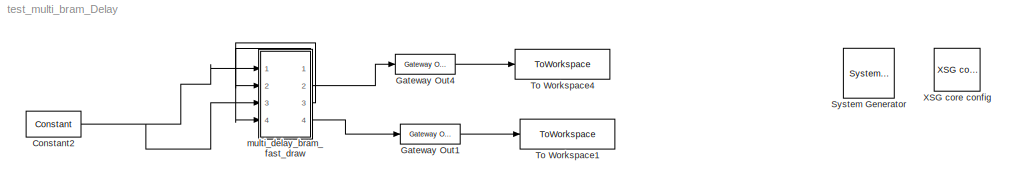
MODEL test_multi_bram_Delay
KIND model
BLOCK [Reference]  System Generator  REF=xbsIndex_r4/ System Generator
  AttributesFormatString = System\\nGenerator
  FunctionWithSeparateData = off
  GeneratePreprocessorConditionals = off
  Ports = []
  RTWMemSecDataConstants = Inherit from model
  RTWMemSecDataInternal = Inherit from model
  RTWMemSecDataParameters = Inherit from model
  RTWMemSecFuncExecute = Inherit from model
  RTWMemSecFuncInitTerm = Inherit from model
  SID = 59
  ShowPortLabels = FromPortIcon
  SourceBlock = xbsIndex_r4/ System Generator
  SourceType = Xilinx System Generator Block
  SystemSampleTime = -1
  Tag = genX
  UserData = DataTag0
  UserDataPersistent = on
  block_type = sysgen
  block_version = 11.4
  clock_wrapper = Clock Enables
  core_generation = According to Block Masks
  dbl_ovrd = According to Block Masks
  dcm_input_clock_period = 100
  deprecated_control = off
  directory = ./spec_2pol_4kw_6tap_pfb/sysgen
  eval_field = 0
  has_advanced_control = 0
  incr_netlist = off
  infoedit = System Generator
  package = ff1136
  part = xc5vsx95t
  run_coregen = off
  sg_icon_stat = 51,50,0,0,token,white,0,58c5b5770fe5f7c311f53dbc6e73f0f6,right,,[ ],[ ]
  sg_mask_display = fprintf('','COMMENT: begin icon graphics');\npatch([0 51 51 0 0 ],[0 0 50 50 0 ],[1 1 1 ]);\npatch([1.6375 16.81 27.31 37.81 48.31 27.31 12.1375 1.6375 ],[36.655 36.655 47.155 36.655 47.155 47.155 47.155 36.655 ],[0.933333 0.203922 0.141176 ]);\npatch([12.1375 27.31 16.81 1.6375 12.1375 ],[26.155 26.155 36.655 36.655 26.155 ],[0.698039 0.0313725 0.219608 ]);\npatch([1.6375 16.81 27.31 12.1375 1.63...<+335ch>
  sggui_pos = 326,241,464,470
  simulink_period = 1
  speed = -1
  synthesis_tool = XST
  sysclk_period = 2.6667
  testbench = off
  trim_vbits = Everywhere in SubSystem
  xilinxfamily = virtex5
BLOCK [Reference] Constant2  REF=xbsIndex_r4/Constant
  Ports = [0, 1]
  SID = 61
  SourceBlock = xbsIndex_r4/Constant
  SourceType = Xilinx Constant Block Block
  arith_type = Signed (2's comp)
  bin_pt = 7
  block_type = constant
  carry = CIN
  const = 0.9
  dbl_ovrd = off
  dsp48_infoedit = The use of this block for DSP48 instructions is deprecated.  Please use the Opmode block.
  equ = P=C
  explicit_period = on
  has_advanced_control = 0
  inp1 = P
  inp2 = PCIN>>17
  n_bits = 8
  opr = +
  opselect = C
  period = 1
  sg_icon_stat = 55,26,0,1,white,blue,0,057bde51,right,,[ ],[ ]
  sg_mask_display = fprintf('','COMMENT: begin icon graphics');\npatch([0 55 55 0 0 ],[0 0 26 26 0 ],[0.77 0.82 0.91 ]);\nplot([0 55 55 0 0 ],[0 0 26 26 0 ]);\npatch([20.325 24.66 27.66 30.66 33.66 27.66 23.325 20.325 ],[16.33 16.33 19.33 16.33 19.33 19.33 19.33 16.33 ],[1 1 1 ]);\npatch([23.325 27.66 24.66 20.325 23.325 ],[13.33 13.33 16.33 16.33 13.33 ],[0.931 0.946 0.973 ]);\npatch([20.325 24.66 27.66 23.325 20.32...<+341ch>
  sggui_pos = -1,-1,-1,-1
BLOCK [Reference] Gateway Out1  REF=xbsIndex_r4/Gateway Out
  LOCs = {}
  Ports = [1, 1]
  SID = 64
  SourceBlock = xbsIndex_r4/Gateway Out
  SourceType = Xilinx Gateway Out Block
  block_type = gatewayout
  block_version = 12.3
  has_advanced_control = 0
  hdl_port = on
  infoedit = Gateway out block.  Converts Xilinx fixed point inputs into ouputs of type Simulink integer, double, or fixed point.<br><br>Hardware notes:  In hardware these blocks become top level output ports or are discarded, depending on how they are configured.  <repeated x7 — deduplicated; at blocks: Gateway Out1, Gateway Out4, Gateway Out2, Gateway Out3, Gateway Out5>
  locs_specified = off
  sg_icon_stat = 60,20,1,1,white,yellow,0,cc31b7ac,right,,[ ],[ ]
  sg_mask_display = fprintf('','COMMENT: begin icon graphics');\npatch([0 60 60 0 0 ],[0 0 20 20 0 ],[0.95 0.93 0.65 ]);\nplot([0 60 60 0 0 ],[0 0 20 20 0 ]);\npatch([25.55 28.44 30.44 32.44 34.44 30.44 27.55 25.55 ],[12.22 12.22 14.22 12.22 14.22 14.22 14.22 12.22 ],[1 1 1 ]);\npatch([27.55 30.44 28.44 25.55 27.55 ],[10.22 10.22 12.22 12.22 10.22 ],[0.985 0.979 0.895 ]);\npatch([25.55 28.44 30.44 27.55 25.55 ],[8.22...<+399ch>  <repeated x7 — deduplicated; at blocks: Gateway Out1, Gateway Out4, Gateway Out2, Gateway Out3, Gateway Out5>
  sggui_pos = -1,-1,-1,-1
  timing_constraint = None
  xl_area = [0,0,0,0,0,0,0]
  xl_use_area = off
BLOCK [Reference] Gateway Out4  REF=xbsIndex_r4/Gateway Out
  LOCs = {}
  Ports = [1, 1]
  SID = 62
  SourceBlock = xbsIndex_r4/Gateway Out
  SourceType = Xilinx Gateway Out Block
  block_type = gatewayout
  block_version = 12.3
  has_advanced_control = 0
  hdl_port = on
  locs_specified = off
  sg_icon_stat = 60,20,1,1,white,yellow,0,cc31b7ac,right,,[ ],[ ]
  sggui_pos = -1,-1,-1,-1
  timing_constraint = None
  xl_area = [0,0,0,0,0,0,0]
  xl_use_area = off
BLOCK [ToWorkspace] To Workspace1
  MaxDataPoints = inf
  Ports = [1]
  SID = 65
  SampleTime = -1
  SaveFormat = Structure
  VariableName = test_delay_1
BLOCK [ToWorkspace] To Workspace4
  MaxDataPoints = inf
  Ports = [1]
  SID = 63
  SampleTime = -1
  SaveFormat = Structure
  VariableName = test_delay
BLOCK [Reference] XSG core config  REF=xps_library/XSG core config  (lib defined in mdl_00b5cec29cd0, mdl_02ab6ecaa3d1, +5 more)
  BEE2_ctrl_clk_src = sys_clk
  BEE2_usr_clk_src = sys_clk
  CORR_clk_src = sys_clk
  FunctionWithSeparateData = off
  GeneratePreprocessorConditionals = off
  Ports = []
  ROACH_clk_src = adc0_clk
  RTWMemSecDataConstants = Inherit from model
  RTWMemSecDataInternal = Inherit from model
  RTWMemSecDataParameters = Inherit from model
  RTWMemSecFuncExecute = Inherit from model
  RTWMemSecFuncInitTerm = Inherit from model
  SID = 60
  ShowPortLabels = FromPortIcon
  SourceBlock = xps_library/XSG core config
  SourceType = xsg core config
  SystemSampleTime = -1
  Tag = xps:xsg
  clk_rate = 375
  clk_src = adc0_clk
  gpio_clk_bit_index = 0
  gpio_clk_io_group = iBOB:sma
  hw_sys = ROACH:sx95t
  iBOB_clk_src = sys_clk
  ibob_linux = off
  mpc_type = powerpc440_ext
  sample_period = 1
  synthesis_tool = XST
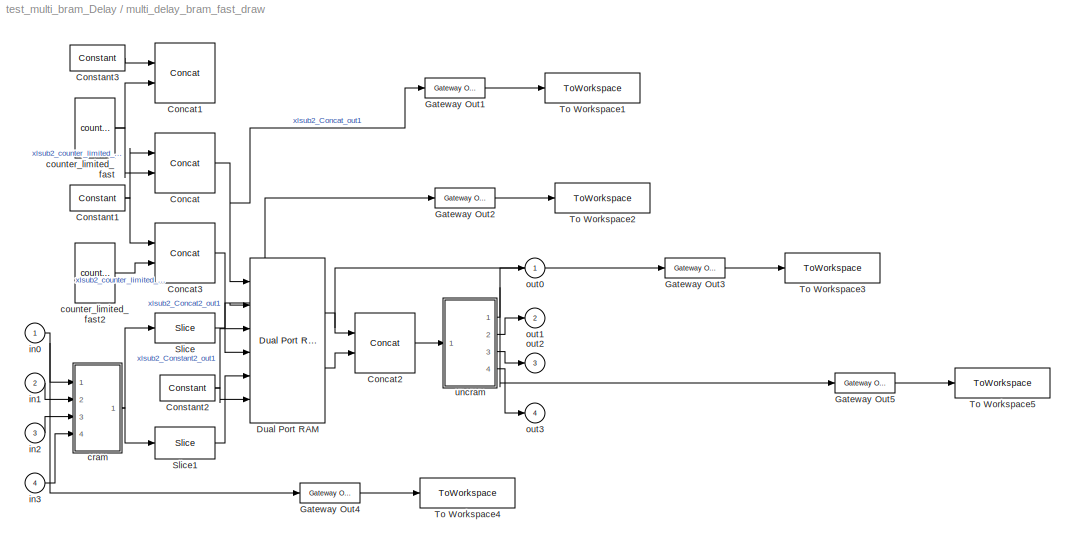
BLOCK [SubSystem] multi_delay_bram_fast_draw
  FunctionWithSeparateData = off
  MaskHideContents = off
  MinAlgLoopOccurrences = off
  Opaque = off
  Ports = [4, 4]
  PropExecContextOutsideSubsystem = off
  RTWSystemCode = Auto
  RequestExecContextInheritance = off
  SID = 3
BLOCK [Reference] multi_delay_bram_fast_draw/Concat  REF=xbsIndex_r4/Concat
  Ports = [2, 1]
  SID = 8
  SourceBlock = xbsIndex_r4/Concat
  SourceType = Xilinx Bus Concatenator Block
  block_type = concat
  dbl_ovrd = off
  has_advanced_control = 0
  infoedit = Concatenates two or more inputs.  Output will be cast to an unsigned value with the binary point at zero.
  num_inputs = 2
  sg_icon_stat = 60,60,2,1,white,blue,0,16398980,right,,[ ],[ ]
  sg_mask_display = fprintf('','COMMENT: begin icon graphics');\npatch([0 60 60 0 0 ],[0 0 60 60 0 ],[0.77 0.82 0.91 ]);\nplot([0 60 60 0 0 ],[0 0 60 60 0 ]);\npatch([12.2 23.76 31.76 39.76 47.76 31.76 20.2 12.2 ],[38.88 38.88 46.88 38.88 46.88 46.88 46.88 38.88 ],[1 1 1 ]);\npatch([20.2 31.76 23.76 12.2 20.2 ],[30.88 30.88 38.88 38.88 30.88 ],[0.931 0.946 0.973 ]);\npatch([12.2 23.76 31.76 20.2 12.2 ],[22.88 22.88 3...<+417ch>  <repeated x4 — deduplicated; at blocks: Concat, Concat1, Concat2, Concat3>
  sggui_pos = -1,-1,-1,-1
BLOCK [Reference] multi_delay_bram_fast_draw/Concat1  REF=xbsIndex_r4/Concat
  Ports = [2, 1]
  SID = 9
  SourceBlock = xbsIndex_r4/Concat
  SourceType = Xilinx Bus Concatenator Block
  block_type = concat
  dbl_ovrd = off
  has_advanced_control = 0
  infoedit = Concatenates two or more inputs.  Output will be cast to an unsigned value with the binary point at zero.
  num_inputs = 2
  sg_icon_stat = 60,60,2,1,white,blue,0,16398980,right,,[ ],[ ]
  sggui_pos = -1,-1,-1,-1
BLOCK [Reference] multi_delay_bram_fast_draw/Concat2  REF=xbsIndex_r4/Concat
  Ports = [2, 1]
  SID = 10
  SourceBlock = xbsIndex_r4/Concat
  SourceType = Xilinx Bus Concatenator Block
  block_type = concat
  dbl_ovrd = off
  has_advanced_control = 0
  infoedit = Concatenates two or more inputs.  Output will be cast to an unsigned value with the binary point at zero.
  num_inputs = 2
  sg_icon_stat = 60,60,2,1,white,blue,0,16398980,right,,[ ],[ ]
  sggui_pos = -1,-1,-1,-1
BLOCK [Reference] multi_delay_bram_fast_draw/Concat3  REF=xbsIndex_r4/Concat
  Ports = [2, 1]
  SID = 11
  SourceBlock = xbsIndex_r4/Concat
  SourceType = Xilinx Bus Concatenator Block
  block_type = concat
  dbl_ovrd = off
  has_advanced_control = 0
  infoedit = Concatenates two or more inputs.  Output will be cast to an unsigned value with the binary point at zero.
  num_inputs = 2
  sg_icon_stat = 60,60,2,1,white,blue,0,16398980,right,,[ ],[ ]
  sggui_pos = -1,-1,-1,-1
BLOCK [Reference] multi_delay_bram_fast_draw/Constant1  REF=xbsIndex_r4/Constant
  Ports = [0, 1]
  SID = 12
  SourceBlock = xbsIndex_r4/Constant
  SourceType = Xilinx Constant Block Block
  arith_type = Boolean
  bin_pt = 0
  block_type = constant
  carry = CIN
  const = 1
  dbl_ovrd = off
  dsp48_infoedit = The use of this block for DSP48 instructions is deprecated.  Please use the Opmode block.
  equ = P=C
  explicit_period = on
  has_advanced_control = 0
  inp1 = P
  inp2 = PCIN>>17
  n_bits = 1
  opr = +
  opselect = C
  period = 1
  sg_icon_stat = 55,26,0,1,white,blue,0,1c72b5be,right,,[ ],[ ]
  sg_mask_display = fprintf('','COMMENT: begin icon graphics');\npatch([0 55 55 0 0 ],[0 0 26 26 0 ],[0.77 0.82 0.91 ]);\nplot([0 55 55 0 0 ],[0 0 26 26 0 ]);\npatch([20.325 24.66 27.66 30.66 33.66 27.66 23.325 20.325 ],[16.33 16.33 19.33 16.33 19.33 19.33 19.33 16.33 ],[1 1 1 ]);\npatch([23.325 27.66 24.66 20.325 23.325 ],[13.33 13.33 16.33 16.33 13.33 ],[0.931 0.946 0.973 ]);\npatch([20.325 24.66 27.66 23.325 20.32...<+333ch>  <repeated x3 — deduplicated; at blocks: Constant1, Constant2, Constant3>
  sggui_pos = -1,-1,-1,-1
BLOCK [Reference] multi_delay_bram_fast_draw/Constant2  REF=xbsIndex_r4/Constant
  Ports = [0, 1]
  SID = 13
  SourceBlock = xbsIndex_r4/Constant
  SourceType = Xilinx Constant Block Block
  arith_type = Boolean
  bin_pt = 0
  block_type = constant
  carry = CIN
  const = 1
  dbl_ovrd = off
  dsp48_infoedit = The use of this block for DSP48 instructions is deprecated.  Please use the Opmode block.
  equ = P=C
  explicit_period = on
  has_advanced_control = 0
  inp1 = P
  inp2 = PCIN>>17
  n_bits = 1
  opr = +
  opselect = C
  period = 1
  sg_icon_stat = 55,26,0,1,white,blue,0,1c72b5be,right,,[ ],[ ]
  sggui_pos = -1,-1,-1,-1
BLOCK [Reference] multi_delay_bram_fast_draw/Constant3  REF=xbsIndex_r4/Constant
  Ports = [0, 1]
  SID = 14
  SourceBlock = xbsIndex_r4/Constant
  SourceType = Xilinx Constant Block Block
  arith_type = Boolean
  bin_pt = 0
  block_type = constant
  carry = CIN
  const = 0
  dbl_ovrd = off
  dsp48_infoedit = The use of this block for DSP48 instructions is deprecated.  Please use the Opmode block.
  equ = P=C
  explicit_period = on
  has_advanced_control = 0
  inp1 = P
  inp2 = PCIN>>17
  n_bits = 1
  opr = +
  opselect = C
  period = 1
  sg_icon_stat = 55,26,0,1,white,blue,0,bf4ddd8b,right,,[ ],[ ]
  sggui_pos = -1,-1,-1,-1
BLOCK [Reference] multi_delay_bram_fast_draw/Dual Port RAM  REF=xbsIndex_r4/Dual Port RAM
  Ports = [6, 2]
  SID = 15
  SourceBlock = xbsIndex_r4/Dual Port RAM
  SourceType = Xilinx Dual Port Random Access Memory Block
  block_type = dpram
  dbl_ovrd = off
  depth = 2048
  distributed_mem = Block RAM
  en_a = off
  en_b = off
  has_advanced_control = 0
  initVector = 0
  init_a = 0
  init_b = 0
  latency = 2
  optimize = Area
  rst_a = off
  rst_b = off
  sg_icon_stat = 75,165,6,2,white,blue,0,28af736d,right,,[ ],[ ]
  sg_mask_display = fprintf('','COMMENT: begin icon graphics');\npatch([0 75 75 0 0 ],[0 0 165 165 0 ],[0.77 0.82 0.91 ]);\nplot([0 75 75 0 0 ],[0 0 165 165 0 ]);\npatch([14.75 29.2 39.2 49.2 59.2 39.2 24.75 14.75 ],[93.1 93.1 103.1 93.1 103.1 103.1 103.1 93.1 ],[1 1 1 ]);\npatch([24.75 39.2 29.2 14.75 24.75 ],[83.1 83.1 93.1 93.1 83.1 ],[0.931 0.946 0.973 ]);\npatch([14.75 29.2 39.2 24.75 14.75 ],[73.1 73.1 83.1 83....<+615ch>
  sggui_pos = -1,-1,-1,-1
  use_rpm = on
  write_mode_A = Read Before Write
  write_mode_B = Read Before Write
  xl_area = [0,0,0,0,0,0,0]
  xl_use_area = off
BLOCK [Reference] multi_delay_bram_fast_draw/Gateway Out1  REF=xbsIndex_r4/Gateway Out
  LOCs = {}
  Ports = [1, 1]
  SID = 16
  SourceBlock = xbsIndex_r4/Gateway Out
  SourceType = Xilinx Gateway Out Block
  block_type = gatewayout
  block_version = 12.3
  has_advanced_control = 0
  hdl_port = on
  locs_specified = off
  sg_icon_stat = 60,20,1,1,white,yellow,0,cc31b7ac,right,,[ ],[ ]
  sggui_pos = -1,-1,-1,-1
  timing_constraint = None
  xl_area = [0,0,0,0,0,0,0]
  xl_use_area = off
BLOCK [Reference] multi_delay_bram_fast_draw/Gateway Out2  REF=xbsIndex_r4/Gateway Out
  LOCs = {}
  Ports = [1, 1]
  SID = 17
  SourceBlock = xbsIndex_r4/Gateway Out
  SourceType = Xilinx Gateway Out Block
  block_type = gatewayout
  block_version = 12.3
  has_advanced_control = 0
  hdl_port = on
  locs_specified = off
  sg_icon_stat = 60,20,1,1,white,yellow,0,cc31b7ac,right,,[ ],[ ]
  sggui_pos = -1,-1,-1,-1
  timing_constraint = None
  xl_area = [0,0,0,0,0,0,0]
  xl_use_area = off
BLOCK [Reference] multi_delay_bram_fast_draw/Gateway Out3  REF=xbsIndex_r4/Gateway Out
  LOCs = {}
  Ports = [1, 1]
  SID = 18
  SourceBlock = xbsIndex_r4/Gateway Out
  SourceType = Xilinx Gateway Out Block
  block_type = gatewayout
  block_version = 12.3
  has_advanced_control = 0
  hdl_port = on
  locs_specified = off
  sg_icon_stat = 60,20,1,1,white,yellow,0,cc31b7ac,right,,[ ],[ ]
  sggui_pos = -1,-1,-1,-1
  timing_constraint = None
  xl_area = [0,0,0,0,0,0,0]
  xl_use_area = off
BLOCK [Reference] multi_delay_bram_fast_draw/Gateway Out4  REF=xbsIndex_r4/Gateway Out
  LOCs = {}
  Ports = [1, 1]
  SID = 19
  SourceBlock = xbsIndex_r4/Gateway Out
  SourceType = Xilinx Gateway Out Block
  block_type = gatewayout
  block_version = 12.3
  has_advanced_control = 0
  hdl_port = on
  locs_specified = off
  sg_icon_stat = 60,20,1,1,white,yellow,0,cc31b7ac,right,,[ ],[ ]
  sggui_pos = -1,-1,-1,-1
  timing_constraint = None
  xl_area = [0,0,0,0,0,0,0]
  xl_use_area = off
BLOCK [Reference] multi_delay_bram_fast_draw/Gateway Out5  REF=xbsIndex_r4/Gateway Out
  LOCs = {}
  Ports = [1, 1]
  SID = 20
  SourceBlock = xbsIndex_r4/Gateway Out
  SourceType = Xilinx Gateway Out Block
  block_type = gatewayout
  block_version = 12.3
  has_advanced_control = 0
  hdl_port = on
  locs_specified = off
  sg_icon_stat = 60,20,1,1,white,yellow,0,cc31b7ac,right,,[ ],[ ]
  sggui_pos = -1,-1,-1,-1
  timing_constraint = None
  xl_area = [0,0,0,0,0,0,0]
  xl_use_area = off
BLOCK [Reference] multi_delay_bram_fast_draw/Slice  REF=xbsIndex_r4/Slice
  Ports = [1, 1]
  SID = 21
  SourceBlock = xbsIndex_r4/Slice
  SourceType = Xilinx Bit Slice Extractor Block
  base0 = MSB of Input
  base1 = MSB of Input
  bit0 = 0
  bit1 = 0
  block_type = slice
  boolean_output = off
  dbl_ovrd = off
  has_advanced_control = 0
  infoedit = Extracts a given range of bits from each input sample and presents it at the output.  The output type is ordinarily unsigned with binary point at zero, but can be Boolean when the slice is one bit wide.<br><br>Hardware notes: In hardware this block costs nothing.  <repeated x6 — deduplicated; at blocks: Slice, Slice1, Slice2, Slice3, Slice4, Slice5>
  mode = Upper Bit Location + Width
  nbits = 16
  sg_icon_stat = 60,30,1,1,white,blue,0,1fd851a7,right,,[ ],[ ]
  sg_mask_display = fprintf('','COMMENT: begin icon graphics');\npatch([0 60 60 0 0 ],[0 0 30 30 0 ],[0.77 0.82 0.91 ]);\nplot([0 60 60 0 0 ],[0 0 30 30 0 ]);\npatch([21.1 26.88 30.88 34.88 38.88 30.88 25.1 21.1 ],[19.44 19.44 23.44 19.44 23.44 23.44 23.44 19.44 ],[1 1 1 ]);\npatch([25.1 30.88 26.88 21.1 25.1 ],[15.44 15.44 19.44 19.44 15.44 ],[0.931 0.946 0.973 ]);\npatch([21.1 26.88 30.88 25.1 21.1 ],[11.44 11.44 1...<+315ch>
  sggui_pos = -1,-1,-1,-1
BLOCK [Reference] multi_delay_bram_fast_draw/Slice1  REF=xbsIndex_r4/Slice
  Ports = [1, 1]
  SID = 22
  SourceBlock = xbsIndex_r4/Slice
  SourceType = Xilinx Bit Slice Extractor Block
  base0 = MSB of Input
  base1 = MSB of Input
  bit0 = 0
  bit1 = -16
  block_type = slice
  boolean_output = off
  dbl_ovrd = off
  has_advanced_control = 0
  mode = Upper Bit Location + Width
  nbits = 16
  sg_icon_stat = 60,32,1,1,white,blue,0,1fd851a7,right,,[ ],[ ]
  sg_mask_display = fprintf('','COMMENT: begin icon graphics');\npatch([0 60 60 0 0 ],[0 0 32 32 0 ],[0.77 0.82 0.91 ]);\nplot([0 60 60 0 0 ],[0 0 32 32 0 ]);\npatch([21.1 26.88 30.88 34.88 38.88 30.88 25.1 21.1 ],[20.44 20.44 24.44 20.44 24.44 24.44 24.44 20.44 ],[1 1 1 ]);\npatch([25.1 30.88 26.88 21.1 25.1 ],[16.44 16.44 20.44 20.44 16.44 ],[0.931 0.946 0.973 ]);\npatch([21.1 26.88 30.88 25.1 21.1 ],[12.44 12.44 1...<+315ch>  <repeated x4 — deduplicated; at blocks: Slice1, Slice2, Slice4, Slice5>
  sggui_pos = -1,-1,-1,-1
BLOCK [ToWorkspace] multi_delay_bram_fast_draw/To Workspace1
  MaxDataPoints = inf
  Ports = [1]
  SID = 23
  SampleTime = -1
  SaveFormat = Structure
  VariableName = sim_mask_out12
BLOCK [ToWorkspace] multi_delay_bram_fast_draw/To Workspace2
  MaxDataPoints = inf
  Ports = [1]
  SID = 24
  SampleTime = -1
  SaveFormat = Structure
  VariableName = sim_mask_out13
BLOCK [ToWorkspace] multi_delay_bram_fast_draw/To Workspace3
  MaxDataPoints = inf
  Ports = [1]
  SID = 25
  SampleTime = -1
  SaveFormat = Structure
  VariableName = sim_mask_out14
BLOCK [ToWorkspace] multi_delay_bram_fast_draw/To Workspace4
  MaxDataPoints = inf
  Ports = [1]
  SID = 26
  SampleTime = -1
  SaveFormat = Structure
  VariableName = sim_mask_out15
BLOCK [ToWorkspace] multi_delay_bram_fast_draw/To Workspace5
  MaxDataPoints = inf
  Ports = [1]
  SID = 27
  SampleTime = -1
  SaveFormat = Structure
  VariableName = sim_mask_out16
BLOCK [Reference] multi_delay_bram_fast_draw/counter_limited_fast  REF=monroe_library/counter_limited_fast  (lib defined in mdl_6e3ec1066caf, mdl_8e463b7c25be, +1 more)
  FunctionWithSeparateData = off
  GeneratePreprocessorConditionals = off
  Ports = [0, 1]
  RTWMemSecDataConstants = Inherit from model
  RTWMemSecDataInternal = Inherit from model
  RTWMemSecDataParameters = Inherit from model
  RTWMemSecFuncExecute = Inherit from model
  RTWMemSecFuncInitTerm = Inherit from model
  SID = 28
  ShowPortLabels = FromPortIcon
  SourceBlock = monroe_library/counter_limited_fast
  SystemSampleTime = -1
  bit_width = 10
  count_to = 1021
BLOCK [Reference] multi_delay_bram_fast_draw/counter_limited_fast2  REF=monroe_library/counter_limited_fast  (lib defined in mdl_6e3ec1066caf, mdl_8e463b7c25be, +1 more)
  FunctionWithSeparateData = off
  GeneratePreprocessorConditionals = off
  Ports = [0, 1]
  RTWMemSecDataConstants = Inherit from model
  RTWMemSecDataInternal = Inherit from model
  RTWMemSecDataParameters = Inherit from model
  RTWMemSecFuncExecute = Inherit from model
  RTWMemSecFuncInitTerm = Inherit from model
  SID = 29
  ShowPortLabels = FromPortIcon
  SourceBlock = monroe_library/counter_limited_fast
  SystemSampleTime = -1
  bit_width = 10
  count_to = 1021
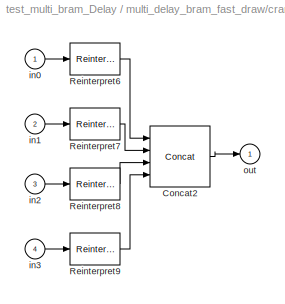
BLOCK [SubSystem] multi_delay_bram_fast_draw/cram
  FunctionWithSeparateData = off
  MaskHideContents = off
  MinAlgLoopOccurrences = off
  Opaque = off
  Ports = [4, 1]
  PropExecContextOutsideSubsystem = off
  RTWSystemCode = Auto
  RequestExecContextInheritance = off
  SID = 30
BLOCK [Reference] multi_delay_bram_fast_draw/cram/Concat2  REF=xbsIndex_r4/Concat
  Ports = [4, 1]
  SID = 35
  SourceBlock = xbsIndex_r4/Concat
  SourceType = Xilinx Bus Concatenator Block
  block_type = concat
  dbl_ovrd = off
  has_advanced_control = 0
  infoedit = Concatenates two or more inputs.  Output will be cast to an unsigned value with the binary point at zero.
  num_inputs = 4
  sg_icon_stat = 60,61,4,1,white,blue,0,47d3d416,right,,[ ],[ ]
  sg_mask_display = fprintf('','COMMENT: begin icon graphics');\npatch([0 60 60 0 0 ],[0 0 61 61 0 ],[0.77 0.82 0.91 ]);\nplot([0 60 60 0 0 ],[0 0 61 61 0 ]);\npatch([12.2 23.76 31.76 39.76 47.76 31.76 20.2 12.2 ],[38.88 38.88 46.88 38.88 46.88 46.88 46.88 38.88 ],[1 1 1 ]);\npatch([20.2 31.76 23.76 12.2 20.2 ],[30.88 30.88 38.88 38.88 30.88 ],[0.931 0.946 0.973 ]);\npatch([12.2 23.76 31.76 20.2 12.2 ],[22.88 22.88 3...<+421ch>
  sggui_pos = -1,-1,-1,-1
BLOCK [Reference] multi_delay_bram_fast_draw/cram/Reinterpret6  REF=xbsIndex_r4/Reinterpret
  Ports = [1, 1]
  SID = 36
  SourceBlock = xbsIndex_r4/Reinterpret
  SourceType = Xilinx Type Reinterpreter Block
  arith_type = Unsigned
  bin_pt = 0
  block_type = reinterpret
  force_arith_type = on
  force_bin_pt = on
  has_advanced_control = 0
  infoedit = Changes signal type without altering the binary representation.   You can changed the signal between signed and unsigned, and relocate the binary point.<br><br>Hardware notes: In hardware this block costs nothing.<br><br>Example:  Suppose the input is 6 bits wide, signed, with 2 fractional bits, and the output is forced to unsigned with 0 fractional bits.  Then an input of -2.0 (1110.00 in binary ...<+59ch>  <repeated x8 — deduplicated; at blocks: Reinterpret6, Reinterpret7, Reinterpret8, Reinterpret9, Reinterpret10, Reinterpret11, Reinterpret12, Reinterpret13>
  sg_icon_stat = 50,32,1,1,white,blue,0,6b04d0b0,right,,[ ],[ ]
  sg_mask_display = fprintf('','COMMENT: begin icon graphics');\npatch([0 50 50 0 0 ],[0 0 32 32 0 ],[0.77 0.82 0.91 ]);\nplot([0 50 50 0 0 ],[0 0 32 32 0 ]);\npatch([16.1 21.88 25.88 29.88 33.88 25.88 20.1 16.1 ],[20.44 20.44 24.44 20.44 24.44 24.44 24.44 20.44 ],[1 1 1 ]);\npatch([20.1 25.88 21.88 16.1 20.1 ],[16.44 16.44 20.44 20.44 16.44 ],[0.931 0.946 0.973 ]);\npatch([16.1 21.88 25.88 20.1 16.1 ],[12.44 12.44 1...<+306ch>  <repeated x8 — deduplicated; at blocks: Reinterpret6, Reinterpret7, Reinterpret8, Reinterpret9, Reinterpret10, Reinterpret11, Reinterpret12, Reinterpret13>
  sggui_pos = -1,-1,-1,-1
BLOCK [Reference] multi_delay_bram_fast_draw/cram/Reinterpret7  REF=xbsIndex_r4/Reinterpret
  Ports = [1, 1]
  SID = 37
  SourceBlock = xbsIndex_r4/Reinterpret
  SourceType = Xilinx Type Reinterpreter Block
  arith_type = Unsigned
  bin_pt = 0
  block_type = reinterpret
  force_arith_type = on
  force_bin_pt = on
  has_advanced_control = 0
  sg_icon_stat = 50,32,1,1,white,blue,0,6b04d0b0,right,,[ ],[ ]
  sggui_pos = -1,-1,-1,-1
BLOCK [Reference] multi_delay_bram_fast_draw/cram/Reinterpret8  REF=xbsIndex_r4/Reinterpret
  Ports = [1, 1]
  SID = 38
  SourceBlock = xbsIndex_r4/Reinterpret
  SourceType = Xilinx Type Reinterpreter Block
  arith_type = Unsigned
  bin_pt = 0
  block_type = reinterpret
  force_arith_type = on
  force_bin_pt = on
  has_advanced_control = 0
  sg_icon_stat = 50,32,1,1,white,blue,0,6b04d0b0,right,,[ ],[ ]
  sggui_pos = -1,-1,-1,-1
BLOCK [Reference] multi_delay_bram_fast_draw/cram/Reinterpret9  REF=xbsIndex_r4/Reinterpret
  Ports = [1, 1]
  SID = 39
  SourceBlock = xbsIndex_r4/Reinterpret
  SourceType = Xilinx Type Reinterpreter Block
  arith_type = Unsigned
  bin_pt = 0
  block_type = reinterpret
  force_arith_type = on
  force_bin_pt = on
  has_advanced_control = 0
  sg_icon_stat = 50,32,1,1,white,blue,0,6b04d0b0,right,,[ ],[ ]
  sggui_pos = -1,-1,-1,-1
BLOCK [Inport] multi_delay_bram_fast_draw/cram/in0
  IconDisplay = Port number
  SID = 31
BLOCK [Inport] multi_delay_bram_fast_draw/cram/in1
  IconDisplay = Port number
  Port = 2
  SID = 32
BLOCK [Inport] multi_delay_bram_fast_draw/cram/in2
  IconDisplay = Port number
  Port = 3
  SID = 33
BLOCK [Inport] multi_delay_bram_fast_draw/cram/in3
  IconDisplay = Port number
  Port = 4
  SID = 34
BLOCK [Outport] multi_delay_bram_fast_draw/cram/out
  IconDisplay = Port number
  SID = 40
BLOCK [Inport] multi_delay_bram_fast_draw/in0
  IconDisplay = Port number
  SID = 4
BLOCK [Inport] multi_delay_bram_fast_draw/in1
  IconDisplay = Port number
  Port = 2
  SID = 5
BLOCK [Inport] multi_delay_bram_fast_draw/in2
  IconDisplay = Port number
  Port = 3
  SID = 6
BLOCK [Inport] multi_delay_bram_fast_draw/in3
  IconDisplay = Port number
  Port = 4
  SID = 7
BLOCK [Outport] multi_delay_bram_fast_draw/out0
  IconDisplay = Port number
  SID = 55
BLOCK [Outport] multi_delay_bram_fast_draw/out1
  IconDisplay = Port number
  Port = 2
  SID = 56
BLOCK [Outport] multi_delay_bram_fast_draw/out2
  IconDisplay = Port number
  Port = 3
  SID = 57
BLOCK [Outport] multi_delay_bram_fast_draw/out3
  IconDisplay = Port number
  Port = 4
  SID = 58
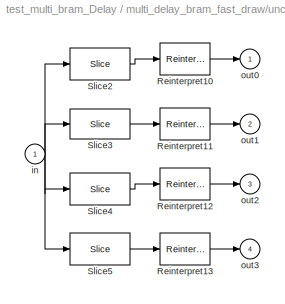
BLOCK [SubSystem] multi_delay_bram_fast_draw/uncram
  FunctionWithSeparateData = off
  MaskHideContents = off
  MinAlgLoopOccurrences = off
  Opaque = off
  Ports = [1, 4]
  PropExecContextOutsideSubsystem = off
  RTWSystemCode = Auto
  RequestExecContextInheritance = off
  SID = 41
BLOCK [Reference] multi_delay_bram_fast_draw/uncram/Reinterpret10  REF=xbsIndex_r4/Reinterpret
  Ports = [1, 1]
  SID = 43
  SourceBlock = xbsIndex_r4/Reinterpret
  SourceType = Xilinx Type Reinterpreter Block
  arith_type = Signed  (2's comp)
  bin_pt = 7
  block_type = reinterpret
  force_arith_type = on
  force_bin_pt = on
  has_advanced_control = 0
  sg_icon_stat = 50,32,1,1,white,blue,0,6b04d0b0,right,,[ ],[ ]
  sggui_pos = -1,-1,-1,-1
BLOCK [Reference] multi_delay_bram_fast_draw/uncram/Reinterpret11  REF=xbsIndex_r4/Reinterpret
  Ports = [1, 1]
  SID = 44
  SourceBlock = xbsIndex_r4/Reinterpret
  SourceType = Xilinx Type Reinterpreter Block
  arith_type = Signed  (2's comp)
  bin_pt = 7
  block_type = reinterpret
  force_arith_type = on
  force_bin_pt = on
  has_advanced_control = 0
  sg_icon_stat = 50,32,1,1,white,blue,0,6b04d0b0,right,,[ ],[ ]
  sggui_pos = -1,-1,-1,-1
BLOCK [Reference] multi_delay_bram_fast_draw/uncram/Reinterpret12  REF=xbsIndex_r4/Reinterpret
  Ports = [1, 1]
  SID = 45
  SourceBlock = xbsIndex_r4/Reinterpret
  SourceType = Xilinx Type Reinterpreter Block
  arith_type = Signed  (2's comp)
  bin_pt = 7
  block_type = reinterpret
  force_arith_type = on
  force_bin_pt = on
  has_advanced_control = 0
  sg_icon_stat = 50,32,1,1,white,blue,0,6b04d0b0,right,,[ ],[ ]
  sggui_pos = -1,-1,-1,-1
BLOCK [Reference] multi_delay_bram_fast_draw/uncram/Reinterpret13  REF=xbsIndex_r4/Reinterpret
  Ports = [1, 1]
  SID = 46
  SourceBlock = xbsIndex_r4/Reinterpret
  SourceType = Xilinx Type Reinterpreter Block
  arith_type = Signed  (2's comp)
  bin_pt = 7
  block_type = reinterpret
  force_arith_type = on
  force_bin_pt = on
  has_advanced_control = 0
  sg_icon_stat = 50,32,1,1,white,blue,0,6b04d0b0,right,,[ ],[ ]
  sggui_pos = -1,-1,-1,-1
BLOCK [Reference] multi_delay_bram_fast_draw/uncram/Slice2  REF=xbsIndex_r4/Slice
  Ports = [1, 1]
  SID = 47
  SourceBlock = xbsIndex_r4/Slice
  SourceType = Xilinx Bit Slice Extractor Block
  base0 = MSB of Input
  base1 = MSB of Input
  bit0 = 0
  bit1 = -0
  block_type = slice
  boolean_output = off
  dbl_ovrd = off
  has_advanced_control = 0
  mode = Upper Bit Location + Width
  nbits = 8
  sg_icon_stat = 60,32,1,1,white,blue,0,1fd851a7,right,,[ ],[ ]
  sggui_pos = -1,-1,-1,-1
BLOCK [Reference] multi_delay_bram_fast_draw/uncram/Slice3  REF=xbsIndex_r4/Slice
  Ports = [1, 1]
  SID = 48
  SourceBlock = xbsIndex_r4/Slice
  SourceType = Xilinx Bit Slice Extractor Block
  base0 = MSB of Input
  base1 = MSB of Input
  bit0 = 0
  bit1 = -8
  block_type = slice
  boolean_output = off
  dbl_ovrd = off
  has_advanced_control = 0
  mode = Upper Bit Location + Width
  nbits = 8
  sg_icon_stat = 60,30,1,1,white,blue,0,1fd851a7,right,,[ ],[ ]
  sg_mask_display = fprintf('','COMMENT: begin icon graphics');\npatch([0 60 60 0 0 ],[0 0 30 30 0 ],[0.77 0.82 0.91 ]);\nplot([0 60 60 0 0 ],[0 0 30 30 0 ]);\npatch([21.1 26.88 30.88 34.88 38.88 30.88 25.1 21.1 ],[19.44 19.44 23.44 19.44 23.44 23.44 23.44 19.44 ],[1 1 1 ]);\npatch([25.1 30.88 26.88 21.1 25.1 ],[15.44 15.44 19.44 19.44 15.44 ],[0.931 0.946 0.973 ]);\npatch([21.1 26.88 30.88 25.1 21.1 ],[11.44 11.44 1...<+315ch>
  sggui_pos = -1,-1,-1,-1
BLOCK [Reference] multi_delay_bram_fast_draw/uncram/Slice4  REF=xbsIndex_r4/Slice
  Ports = [1, 1]
  SID = 49
  SourceBlock = xbsIndex_r4/Slice
  SourceType = Xilinx Bit Slice Extractor Block
  base0 = MSB of Input
  base1 = MSB of Input
  bit0 = 0
  bit1 = -16
  block_type = slice
  boolean_output = off
  dbl_ovrd = off
  has_advanced_control = 0
  mode = Upper Bit Location + Width
  nbits = 8
  sg_icon_stat = 60,32,1,1,white,blue,0,1fd851a7,right,,[ ],[ ]
  sggui_pos = -1,-1,-1,-1
BLOCK [Reference] multi_delay_bram_fast_draw/uncram/Slice5  REF=xbsIndex_r4/Slice
  Ports = [1, 1]
  SID = 50
  SourceBlock = xbsIndex_r4/Slice
  SourceType = Xilinx Bit Slice Extractor Block
  base0 = MSB of Input
  base1 = MSB of Input
  bit0 = 0
  bit1 = -24
  block_type = slice
  boolean_output = off
  dbl_ovrd = off
  has_advanced_control = 0
  mode = Upper Bit Location + Width
  nbits = 8
  sg_icon_stat = 60,32,1,1,white,blue,0,1fd851a7,right,,[ ],[ ]
  sggui_pos = -1,-1,-1,-1
BLOCK [Inport] multi_delay_bram_fast_draw/uncram/in
  IconDisplay = Port number
  SID = 42
BLOCK [Outport] multi_delay_bram_fast_draw/uncram/out0
  IconDisplay = Port number
  SID = 51
BLOCK [Outport] multi_delay_bram_fast_draw/uncram/out1
  IconDisplay = Port number
  Port = 2
  SID = 52
BLOCK [Outport] multi_delay_bram_fast_draw/uncram/out2
  IconDisplay = Port number
  Port = 3
  SID = 53
BLOCK [Outport] multi_delay_bram_fast_draw/uncram/out3
  IconDisplay = Port number
  Port = 4
  SID = 54
NET Constant2:1 -> multi_delay_bram_fast_draw:1, multi_delay_bram_fast_draw:3
LINE Gateway Out1:1 -> To Workspace1:1
LINE Gateway Out4:1 -> To Workspace4:1
LINE multi_delay_bram_fast_draw/Concat2:1 -> multi_delay_bram_fast_draw/uncram:1
LINE multi_delay_bram_fast_draw/Concat3:1 -> multi_delay_bram_fast_draw/Dual Port RAM:4
NET multi_delay_bram_fast_draw/Concat:1 -> multi_delay_bram_fast_draw/Dual Port RAM:1, multi_delay_bram_fast_draw/Gateway Out1:1
NET multi_delay_bram_fast_draw/Constant1:1 -> multi_delay_bram_fast_draw/Concat3:1, multi_delay_bram_fast_draw/Concat:1
NET multi_delay_bram_fast_draw/Constant2:1 -> multi_delay_bram_fast_draw/Dual Port RAM:3, multi_delay_bram_fast_draw/Dual Port RAM:6
LINE multi_delay_bram_fast_draw/Constant3:1 -> multi_delay_bram_fast_draw/Concat1:1
NET multi_delay_bram_fast_draw/Dual Port RAM:1 -> multi_delay_bram_fast_draw/Concat2:1, multi_delay_bram_fast_draw/Gateway Out3:1
LINE multi_delay_bram_fast_draw/Dual Port RAM:2 -> multi_delay_bram_fast_draw/Concat2:2
LINE multi_delay_bram_fast_draw/Gateway Out1:1 -> multi_delay_bram_fast_draw/To Workspace1:1
LINE multi_delay_bram_fast_draw/Gateway Out2:1 -> multi_delay_bram_fast_draw/To Workspace2:1
LINE multi_delay_bram_fast_draw/Gateway Out3:1 -> multi_delay_bram_fast_draw/To Workspace3:1
LINE multi_delay_bram_fast_draw/Gateway Out4:1 -> multi_delay_bram_fast_draw/To Workspace4:1
LINE multi_delay_bram_fast_draw/Gateway Out5:1 -> multi_delay_bram_fast_draw/To Workspace5:1
LINE multi_delay_bram_fast_draw/Slice1:1 -> multi_delay_bram_fast_draw/Dual Port RAM:5
NET multi_delay_bram_fast_draw/Slice:1 -> multi_delay_bram_fast_draw/Dual Port RAM:2, multi_delay_bram_fast_draw/Gateway Out2:1
LINE multi_delay_bram_fast_draw/counter_limited_fast2:1 -> multi_delay_bram_fast_draw/Concat3:2
NET multi_delay_bram_fast_draw/counter_limited_fast:1 -> multi_delay_bram_fast_draw/Concat1:2, multi_delay_bram_fast_draw/Concat:2
LINE multi_delay_bram_fast_draw/cram/Concat2:1 -> multi_delay_bram_fast_draw/cram/out:1
LINE multi_delay_bram_fast_draw/cram/Reinterpret6:1 -> multi_delay_bram_fast_draw/cram/Concat2:1
LINE multi_delay_bram_fast_draw/cram/Reinterpret7:1 -> multi_delay_bram_fast_draw/cram/Concat2:2
LINE multi_delay_bram_fast_draw/cram/Reinterpret8:1 -> multi_delay_bram_fast_draw/cram/Concat2:3
LINE multi_delay_bram_fast_draw/cram/Reinterpret9:1 -> multi_delay_bram_fast_draw/cram/Concat2:4
LINE multi_delay_bram_fast_draw/cram/in0:1 -> multi_delay_bram_fast_draw/cram/Reinterpret6:1
LINE multi_delay_bram_fast_draw/cram/in1:1 -> multi_delay_bram_fast_draw/cram/Reinterpret7:1
LINE multi_delay_bram_fast_draw/cram/in2:1 -> multi_delay_bram_fast_draw/cram/Reinterpret8:1
LINE multi_delay_bram_fast_draw/cram/in3:1 -> multi_delay_bram_fast_draw/cram/Reinterpret9:1
NET multi_delay_bram_fast_draw/cram:1 -> multi_delay_bram_fast_draw/Slice1:1, multi_delay_bram_fast_draw/Slice:1
NET multi_delay_bram_fast_draw/in0:1 -> multi_delay_bram_fast_draw/Gateway Out4:1, multi_delay_bram_fast_draw/cram:1
LINE multi_delay_bram_fast_draw/in1:1 -> multi_delay_bram_fast_draw/cram:2
LINE multi_delay_bram_fast_draw/in2:1 -> multi_delay_bram_fast_draw/cram:3
LINE multi_delay_bram_fast_draw/in3:1 -> multi_delay_bram_fast_draw/cram:4
LINE multi_delay_bram_fast_draw/uncram/Reinterpret10:1 -> multi_delay_bram_fast_draw/uncram/out0:1
LINE multi_delay_bram_fast_draw/uncram/Reinterpret11:1 -> multi_delay_bram_fast_draw/uncram/out1:1
LINE multi_delay_bram_fast_draw/uncram/Reinterpret12:1 -> multi_delay_bram_fast_draw/uncram/out2:1
LINE multi_delay_bram_fast_draw/uncram/Reinterpret13:1 -> multi_delay_bram_fast_draw/uncram/out3:1
LINE multi_delay_bram_fast_draw/uncram/Slice2:1 -> multi_delay_bram_fast_draw/uncram/Reinterpret10:1
LINE multi_delay_bram_fast_draw/uncram/Slice3:1 -> multi_delay_bram_fast_draw/uncram/Reinterpret11:1
LINE multi_delay_bram_fast_draw/uncram/Slice4:1 -> multi_delay_bram_fast_draw/uncram/Reinterpret12:1
LINE multi_delay_bram_fast_draw/uncram/Slice5:1 -> multi_delay_bram_fast_draw/uncram/Reinterpret13:1
NET multi_delay_bram_fast_draw/uncram/in:1 -> multi_delay_bram_fast_draw/uncram/Slice2:1, multi_delay_bram_fast_draw/uncram/Slice3:1, multi_delay_bram_fast_draw/uncram/Slice4:1, multi_delay_bram_fast_draw/uncram/Slice5:1
NET multi_delay_bram_fast_draw/uncram:1 -> multi_delay_bram_fast_draw/Gateway Out5:1, multi_delay_bram_fast_draw/out0:1
LINE multi_delay_bram_fast_draw/uncram:2 -> multi_delay_bram_fast_draw/out1:1
LINE multi_delay_bram_fast_draw/uncram:3 -> multi_delay_bram_fast_draw/out2:1
LINE multi_delay_bram_fast_draw/uncram:4 -> multi_delay_bram_fast_draw/out3:1
LINE multi_delay_bram_fast_draw:1 -> multi_delay_bram_fast_draw:2
LINE multi_delay_bram_fast_draw:2 -> Gateway Out4:1
LINE multi_delay_bram_fast_draw:3 -> multi_delay_bram_fast_draw:4
LINE multi_delay_bram_fast_draw:4 -> Gateway Out1:1
note: NET lines group one-source signal fan-out (src -> all destinations, sorted); 1:1 wires keep LINE
